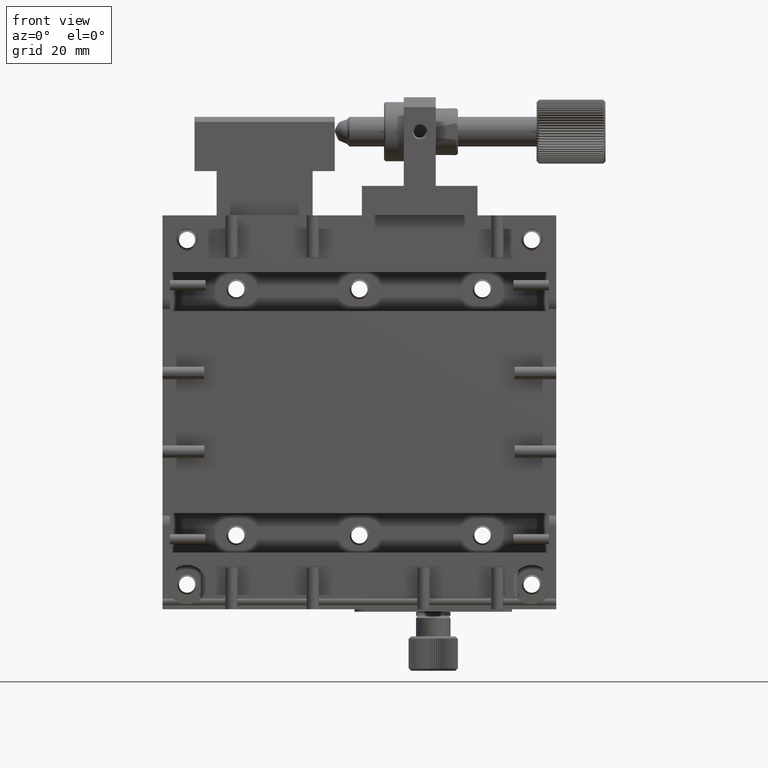
[diagram: clean part render]
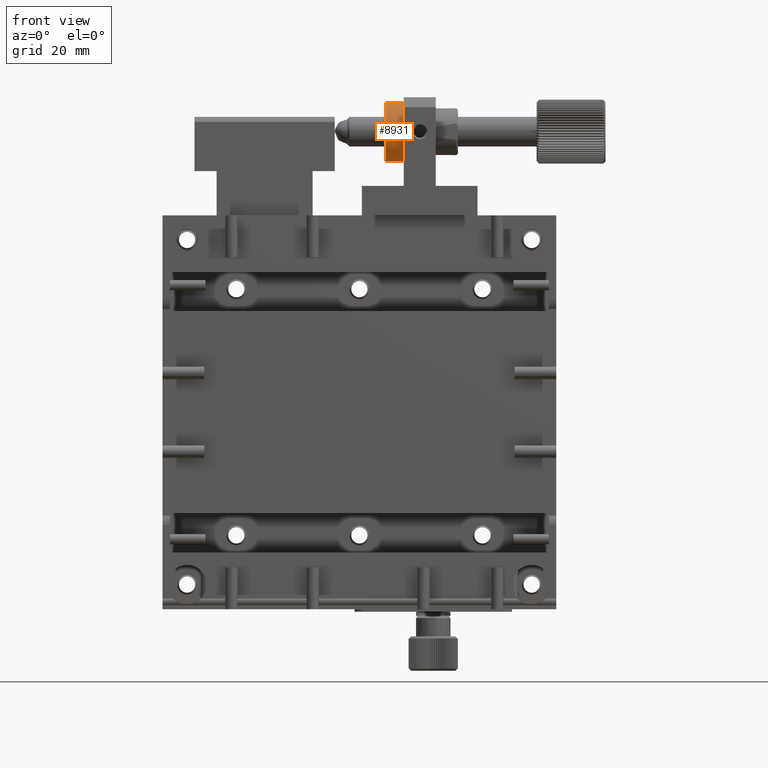
[diagram: same view with one face highlighted and labeled with its STEP entity id]
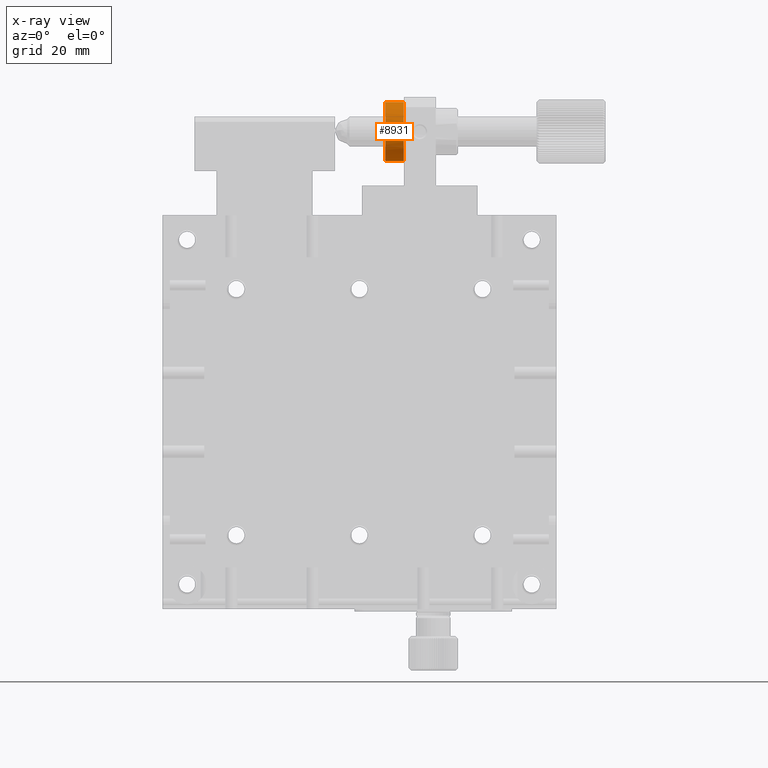
[diagram: x-ray of the same camera — body ghosted, the highlighted face saturated]
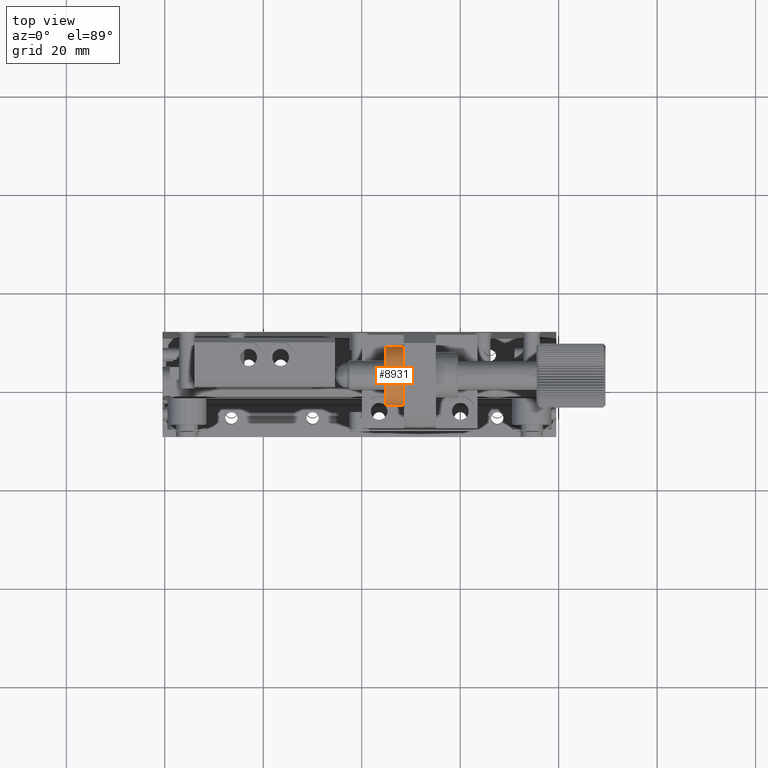
[diagram: same view with one face highlighted and labeled with its STEP entity id]
A machine part, front view. The second image highlights one B-rep face of the part: STEP entity #8931.
The next image is the same camera in x-ray: the body ghosted, the highlighted face saturated — about 0% of this face is hidden behind the body in this view.
A second angle (top view) of the same face is appended — the face is thin or edge-on in the first view.
In plain terms, the highlighted cylindrical surface (bore or boss wall) has radius 6 mm, axis along (-1, -0, -0).
Its self-contained STEP definition (entity closure, byte-faithful):
#719 = CARTESIAN_POINT ( 'NONE',  ( 19.52852657939980219, 1.456824835573190313, 57.00000000000001421 ) ) ;
#1190 = CIRCLE ( 'NONE', #21977, 5.999999999949941376 ) ;
#1566 = DIRECTION ( 'NONE',  ( -1.000000000000000000, -7.172504983067930237E-17, -2.377332221290395705E-16 ) ) ;
#2588 = VERTEX_POINT ( 'NONE', #4658 ) ;
#2616 = CARTESIAN_POINT ( 'NONE',  ( 4.828526579331082758, -4.543175164371859864, 57.00000000000001421 ) ) ;
#4168 = ORIENTED_EDGE ( 'NONE', *, *, #11558, .F. ) ;
#4658 = CARTESIAN_POINT ( 'NONE',  ( 8.528526579375698802, 1.456824835573189425, 62.99999999994995648 ) ) ;
#5685 = ORIENTED_EDGE ( 'NONE', *, *, #24902, .T. ) ;
#7739 = CYLINDRICAL_SURFACE ( 'NONE', #9985, 5.999999999949941376 ) ;
#8931 = ADVANCED_FACE ( 'NONE', ( #11655, #19598 ), #7739, .T. ) ;
#9985 = AXIS2_PLACEMENT_3D ( 'NONE', #719, #16865, #14797 ) ;
#10189 = CARTESIAN_POINT ( 'NONE',  ( 4.828526579331082758, 1.456824835573189203, 57.00000000000001421 ) ) ;
#10585 = DIRECTION ( 'NONE',  ( 0.000000000000000000, -1.000000000000000000, 0.000000000000000000 ) ) ;
#11470 = DIRECTION ( 'NONE',  ( -2.891205793318800214E-16, 0.000000000000000000, 1.000000000000000000 ) ) ;
#11558 = EDGE_CURVE ( 'NONE', #12637, #12637, #18825, .T. ) ;
#11655 = FACE_OUTER_BOUND ( 'NONE', #12360, .T. ) ;
#12360 = EDGE_LOOP ( 'NONE', ( #4168 ) ) ;
#12637 = VERTEX_POINT ( 'NONE', #2616 ) ;
#14797 = DIRECTION ( 'NONE',  ( 0.000000000000000000, 0.000000000000000000, 1.000000000000000000 ) ) ;
#16701 = AXIS2_PLACEMENT_3D ( 'NONE', #10189, #20219, #10585 ) ;
#16865 = DIRECTION ( 'NONE',  ( -1.000000000000000000, -7.172504983067930237E-17, -2.377332221290395705E-16 ) ) ;
#17331 = CARTESIAN_POINT ( 'NONE',  ( 8.528526579375700578, 1.456824835573189425, 57.00000000000001421 ) ) ;
#18825 = CIRCLE ( 'NONE', #16701, 5.999999999945049289 ) ;
#19598 = FACE_OUTER_BOUND ( 'NONE', #19753, .T. ) ;
#19753 = EDGE_LOOP ( 'NONE', ( #5685 ) ) ;
#20219 = DIRECTION ( 'NONE',  ( -1.000000000000000000, -7.172504983067930237E-17, -2.377332221290395705E-16 ) ) ;
#21977 = AXIS2_PLACEMENT_3D ( 'NONE', #17331, #1566, #11470 ) ;
#24902 = EDGE_CURVE ( 'NONE', #2588, #2588, #1190, .T. ) ;